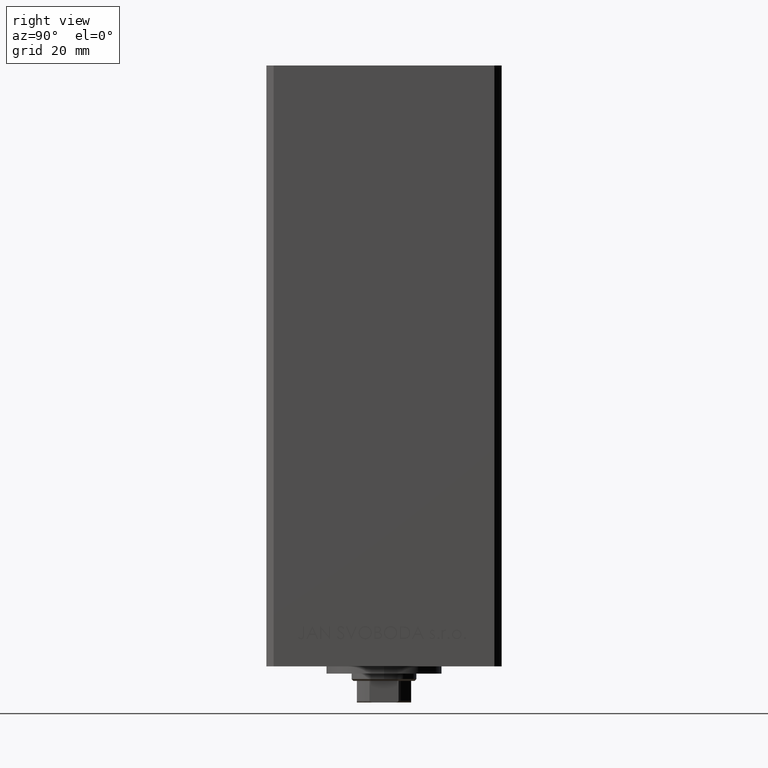
[diagram: clean part render]
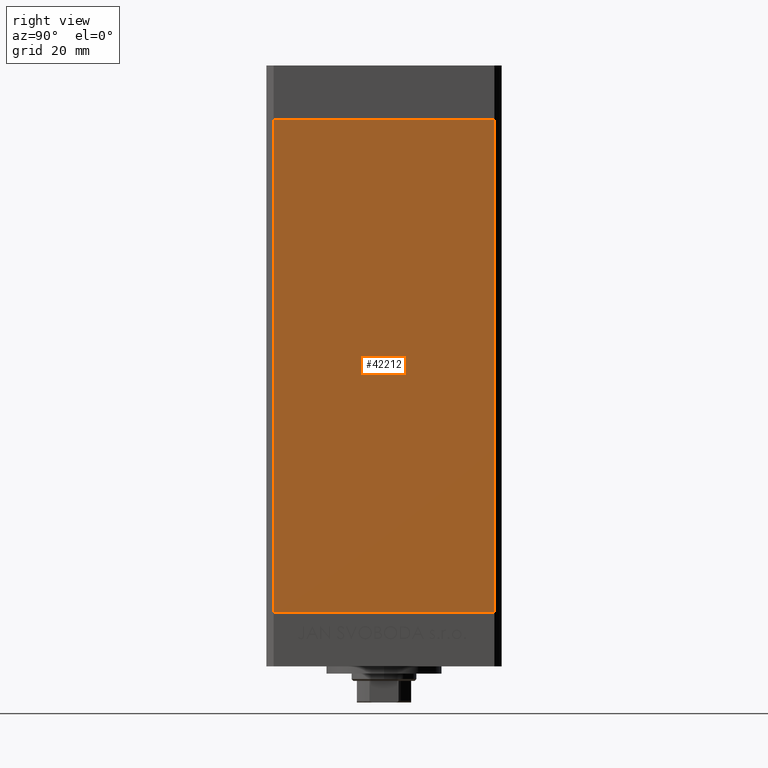
[diagram: same view with one face highlighted and labeled with its STEP entity id]
A machine part, right view. The second image highlights one B-rep face of the part: STEP entity #42212.
In plain terms, the highlighted planar face has unit normal (1, -0, 0).
Its self-contained STEP definition (entity closure, byte-faithful):
#344 = CARTESIAN_POINT ( 'NONE',  ( 37.50000000000000711, 30.50000000000000000, 136.0000000000000000 ) ) ;
#600 = AXIS2_PLACEMENT_3D ( 'NONE', #5256, #1305, #23786 ) ;
#1305 = DIRECTION ( 'NONE',  ( 1.000000000000000000, -2.275047181608927644E-16, 0.000000000000000000 ) ) ;
#1814 = EDGE_CURVE ( 'NONE', #46549, #31002, #17667, .T. ) ;
#3944 = EDGE_CURVE ( 'NONE', #10767, #46549, #29782, .T. ) ;
#5256 = CARTESIAN_POINT ( 'NONE',  ( 37.50000000000000711, 30.50000000000000000, 136.0000000000000000 ) ) ;
#8544 = VERTEX_POINT ( 'NONE', #25753 ) ;
#10480 = VECTOR ( 'NONE', #45348, 1000.000000000000000 ) ;
#10767 = VERTEX_POINT ( 'NONE', #47746 ) ;
#11211 = EDGE_CURVE ( 'NONE', #8544, #31002, #26249, .T. ) ;
#12417 = PLANE ( 'NONE',  #600 ) ;
#13500 = DIRECTION ( 'NONE',  ( -2.275047181608927644E-16, -1.000000000000000000, 0.000000000000000000 ) ) ;
#14197 = EDGE_CURVE ( 'NONE', #10767, #8544, #33032, .T. ) ;
#15046 = ORIENTED_EDGE ( 'NONE', *, *, #11211, .T. ) ;
#17667 = LINE ( 'NONE', #40405, #47533 ) ;
#21609 = DIRECTION ( 'NONE',  ( -2.275047181608927644E-16, -1.000000000000000000, 0.000000000000000000 ) ) ;
#21989 = ORIENTED_EDGE ( 'NONE', *, *, #3944, .F. ) ;
#22794 = ORIENTED_EDGE ( 'NONE', *, *, #1814, .F. ) ;
#22801 = CARTESIAN_POINT ( 'NONE',  ( 37.49999999999999289, -30.50000000000000000, 136.0000000000000000 ) ) ;
#23786 = DIRECTION ( 'NONE',  ( 2.275047181608927644E-16, 1.000000000000000000, 0.000000000000000000 ) ) ;
#25753 = CARTESIAN_POINT ( 'NONE',  ( 37.49999999999999289, -30.50000000000000000, 136.0000000000000000 ) ) ;
#26249 = LINE ( 'NONE', #22801, #33598 ) ;
#27552 = CARTESIAN_POINT ( 'NONE',  ( 37.50000000000000711, 30.50000000000000000, 0.000000000000000000 ) ) ;
#27721 = ORIENTED_EDGE ( 'NONE', *, *, #14197, .T. ) ;
#29782 = LINE ( 'NONE', #344, #10480 ) ;
#31002 = VERTEX_POINT ( 'NONE', #31691 ) ;
#31691 = CARTESIAN_POINT ( 'NONE',  ( 37.49999999999999289, -30.50000000000000000, 0.000000000000000000 ) ) ;
#32008 = VECTOR ( 'NONE', #13500, 1000.000000000000000 ) ;
#32295 = CARTESIAN_POINT ( 'NONE',  ( 37.50000000000000711, 30.50000000000000000, 136.0000000000000000 ) ) ;
#33032 = LINE ( 'NONE', #32295, #32008 ) ;
#33598 = VECTOR ( 'NONE', #48070, 1000.000000000000000 ) ;
#38144 = FACE_OUTER_BOUND ( 'NONE', #41324, .T. ) ;
#40405 = CARTESIAN_POINT ( 'NONE',  ( 37.50000000000000711, 30.50000000000000000, 0.000000000000000000 ) ) ;
#41324 = EDGE_LOOP ( 'NONE', ( #22794, #21989, #27721, #15046 ) ) ;
#42212 = ADVANCED_FACE ( 'NONE', ( #38144 ), #12417, .T. ) ;
#45348 = DIRECTION ( 'NONE',  ( -0.000000000000000000, -0.000000000000000000, -1.000000000000000000 ) ) ;
#46549 = VERTEX_POINT ( 'NONE', #27552 ) ;
#47533 = VECTOR ( 'NONE', #21609, 1000.000000000000000 ) ;
#47746 = CARTESIAN_POINT ( 'NONE',  ( 37.50000000000000711, 30.50000000000000000, 136.0000000000000000 ) ) ;
#48070 = DIRECTION ( 'NONE',  ( -0.000000000000000000, -0.000000000000000000, -1.000000000000000000 ) ) ;